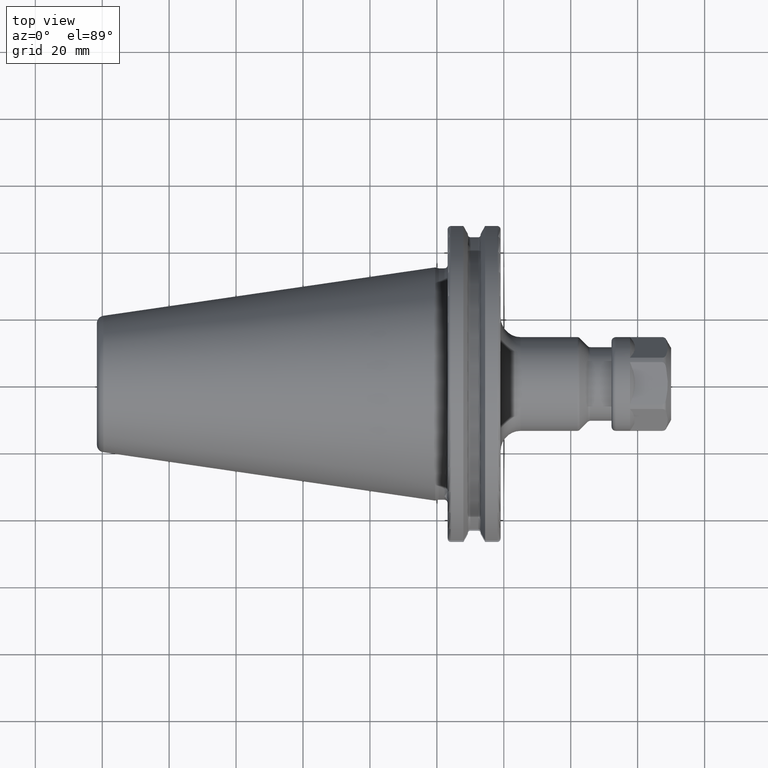
[diagram: clean part render]
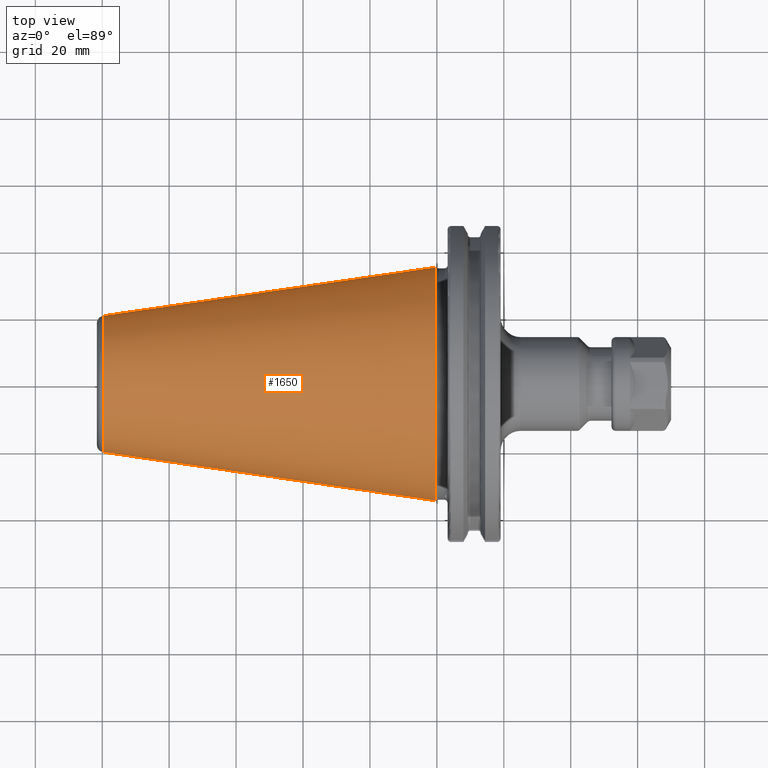
[diagram: same view with one face highlighted and labeled with its STEP entity id]
A machine part, top view. The second image highlights one B-rep face of the part: STEP entity #1650.
In plain terms, the highlighted conical surface has half-angle 8.298 deg.
Its self-contained STEP definition (entity closure, byte-faithful):
#37=CARTESIAN_POINT('',(-9.967471700563E1,0.E0,0.E0));
#38=DIRECTION('',(1.E0,0.E0,0.E0));
#39=DIRECTION('',(0.E0,1.E0,0.E0));
#40=AXIS2_PLACEMENT_3D('',#37,#38,#39);
#42=CARTESIAN_POINT('',(-4.896823332305E-1,0.E0,0.E0));
#43=DIRECTION('',(1.E0,0.E0,0.E0));
#44=DIRECTION('',(0.E0,1.E0,0.E0));
#45=AXIS2_PLACEMENT_3D('',#42,#43,#44);
#47=DIRECTION('',(-9.895312636440E-1,-1.443186691705E-1,0.E0));
#48=VECTOR('',#47,1.002343617797E2);
#49=CARTESIAN_POINT('',(-4.896823332305E-1,3.485358204157E1,0.E0));
#50=LINE('',#49,#48);
#51=DIRECTION('',(-9.895312636440E-1,1.443186691705E-1,0.E0));
#52=VECTOR('',#51,1.002343617797E2);
#53=CARTESIAN_POINT('',(-4.896823332305E-1,-3.485358204157E1,0.E0));
#54=LINE('',#53,#52);
#1318=CARTESIAN_POINT('',(-9.967471700563E1,2.038789234437E1,0.E0));
#1320=VERTEX_POINT('',#1318);
#1322=CARTESIAN_POINT('',(-9.967471700563E1,-2.038789234437E1,0.E0));
#1324=VERTEX_POINT('',#1322);
#1386=CARTESIAN_POINT('',(-4.896823332305E-1,3.485358204157E1,0.E0));
#1387=VERTEX_POINT('',#1386);
#1388=CARTESIAN_POINT('',(-4.896823332305E-1,-3.485358204157E1,0.E0));
#1389=VERTEX_POINT('',#1388);
#1636=CARTESIAN_POINT('',(-5.008219966943E1,0.E0,0.E0));
#1637=DIRECTION('',(1.E0,0.E0,0.E0));
#1638=DIRECTION('',(0.E0,-1.E0,0.E0));
#1639=AXIS2_PLACEMENT_3D('',#1636,#1637,#1638);
#1640=CONICAL_SURFACE('',#1639,2.762073719297E1,8.297826828206E0);
#1642=ORIENTED_EDGE('',*,*,#1641,.F.);
#1644=ORIENTED_EDGE('',*,*,#1643,.T.);
#1646=ORIENTED_EDGE('',*,*,#1645,.T.);
#1647=ORIENTED_EDGE('',*,*,#1629,.F.);
#1648=EDGE_LOOP('',(#1642,#1644,#1646,#1647));
#1649=FACE_OUTER_BOUND('',#1648,.F.);
#1650=ADVANCED_FACE('',(#1649),#1640,.T.);
#41=CIRCLE('',#40,2.038789234437E1);
#46=CIRCLE('',#45,3.485358204157E1);
#1629=EDGE_CURVE('',#1320,#1324,#41,.T.);
#1641=EDGE_CURVE('',#1387,#1320,#50,.T.);
#1643=EDGE_CURVE('',#1387,#1389,#46,.T.);
#1645=EDGE_CURVE('',#1389,#1324,#54,.T.);